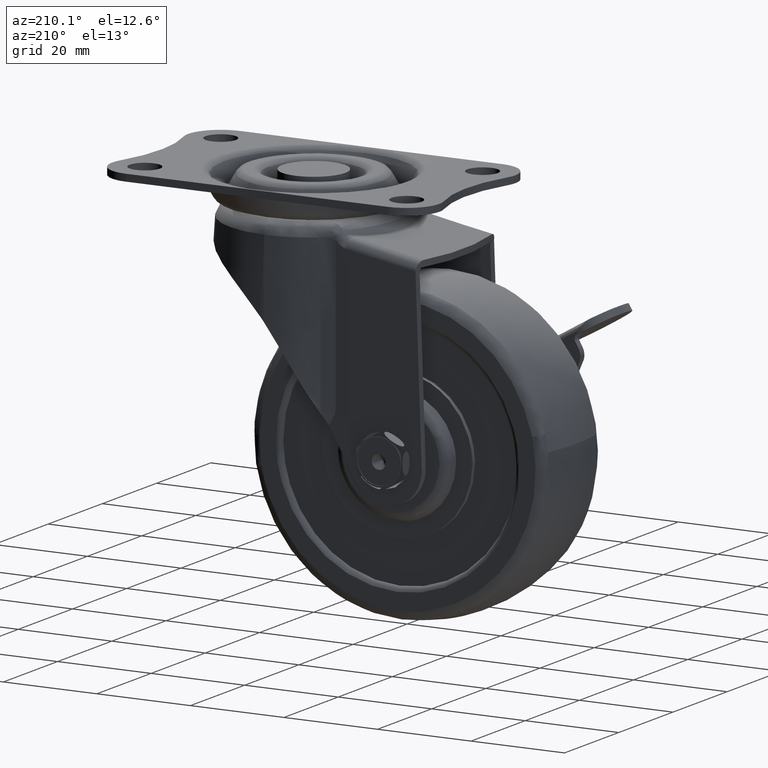
[diagram: clean part render]
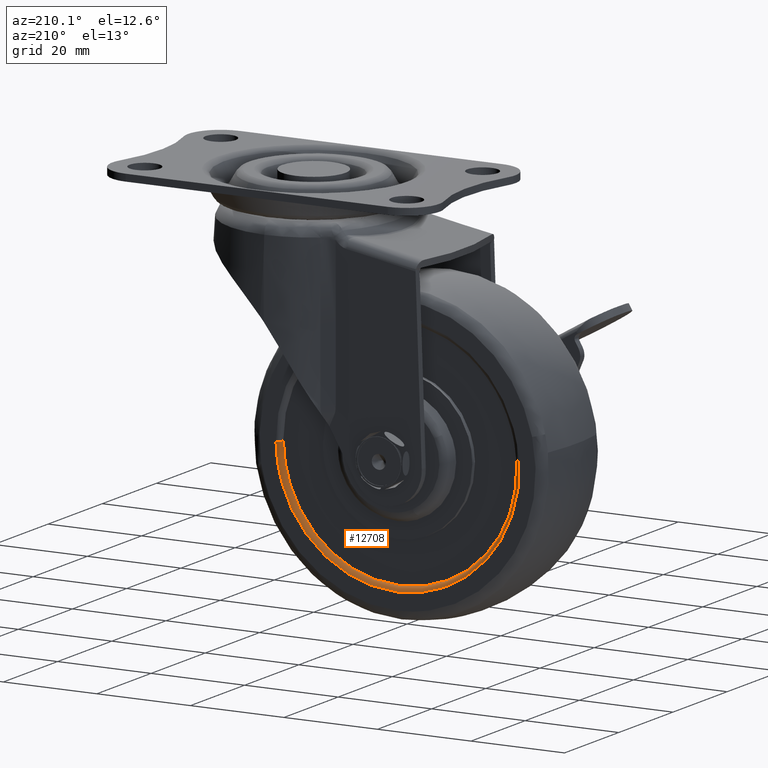
[diagram: same view with one face highlighted and labeled with its STEP entity id]
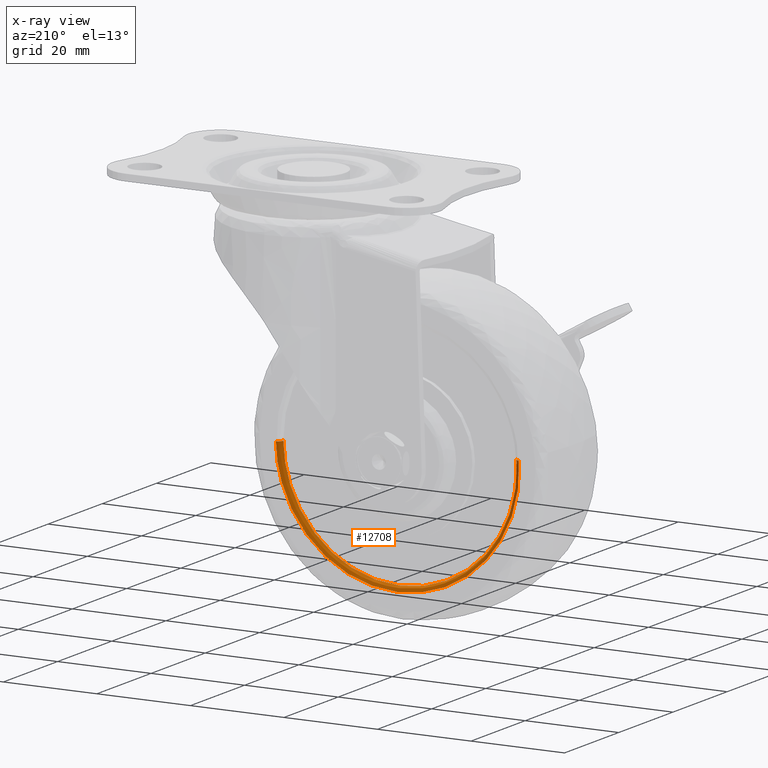
[diagram: x-ray of the same camera — body ghosted, the highlighted face saturated]
A machine part, auxiliary view. The second image highlights one B-rep face of the part: STEP entity #12708.
The next image is the same camera in x-ray: the body ghosted, the highlighted face saturated — about 0% of this face is hidden behind the body in this view.
In plain terms, the highlighted face is a freeform B-spline surface patch.
Its self-contained STEP definition (entity closure, byte-faithful):
#12575=CARTESIAN_POINT('',(-48.941556695166682,9.430462732127682,-46.256497287636890));
#12576=CARTESIAN_POINT('',(-48.991454831106047,9.430462732127678,-46.970313235816420));
#12577=CARTESIAN_POINT('',(-49.000446559545402,9.430462732127683,-47.685814584987355));
#12578=CARTESIAN_POINT('',(-49.314627974558043,9.430462732127682,-72.686261144532750));
#12579=CARTESIAN_POINT('',(-24.314181415012651,9.430462732127683,-73.000442559545419));
#12580=CARTESIAN_POINT('',(0.686265144532764,9.430462732127682,-73.314623974558060));
#12581=CARTESIAN_POINT('',(1.000446559545413,9.430462732127683,-48.314177415012658));
#12582=CARTESIAN_POINT('',(-48.861793095672816,10.577541061535856,-46.262073031553378));
#12583=CARTESIAN_POINT('',(-48.911531656370812,10.577541061535854,-46.973606181987044));
#12584=CARTESIAN_POINT('',(-48.920494629081922,10.577541061535857,-47.686819343465821));
#12585=CARTESIAN_POINT('',(-49.233671285616111,10.577541061535856,-72.607313972547743));
#12586=CARTESIAN_POINT('',(-24.313176656534182,10.577541061535857,-72.920490629081939));
#12587=CARTESIAN_POINT('',(0.607317972547745,10.577541061535856,-73.233667285616093));
#12588=CARTESIAN_POINT('',(0.920494629081935,10.577541061535857,-48.313172656534199));
#12589=CARTESIAN_POINT('',(-50.006078810325214,10.497579130909934,-46.182083610906744));
#12590=CARTESIAN_POINT('',(-50.058106631667222,10.497579130909932,-46.926365695273269));
#12591=CARTESIAN_POINT('',(-50.067482133015936,10.497579130909932,-47.672405114658766));
#12592=CARTESIAN_POINT('',(-50.395073018357174,10.497579130909930,-73.739887247674702));
#12593=CARTESIAN_POINT('',(-24.327590885341241,10.497579130909932,-74.067478133015925));
#12594=CARTESIAN_POINT('',(1.739891247674698,10.497579130909930,-74.395069018357162));
#12595=CARTESIAN_POINT('',(2.067482133015939,10.497579130909932,-48.327586885341248));
#12603=(BOUNDED_SURFACE()B_SPLINE_SURFACE(2,2,((#12575,#12582,#12589),(#12576,#12583,#12590),(#12577,#12584,#12591),(#12578,#12585,#12592),(#12579,#12586,#12593),(#12580,#12587,#12594),(#12581,#12588,#12595)),.UNSPECIFIED.,.F.,.F.,.U.)B_SPLINE_SURFACE_WITH_KNOTS((3,2,2,3),(3,3),(0.0,1.727735508990417,44.921164426214652,88.114593343438870),(0.0,1.822378177385583),.UNSPECIFIED.)GEOMETRIC_REPRESENTATION_ITEM()RATIONAL_B_SPLINE_SURFACE(((0.889999364455320,0.584039050125511,0.890000667766525),(0.899812936190551,0.590478952605768,0.899814253872707),(0.910479861105125,0.597478846025558,0.910481194407880),(0.643806483921220,0.422481343640185,0.643807426708639),(0.910479861105125,0.597478846025558,0.910481194407880),(0.643806483921220,0.422481343640185,0.643807426708639),(0.910479861105125,0.597478846025558,0.910481194407880)))REPRESENTATION_ITEM('')SURFACE());
#12604=CARTESIAN_POINT('',(-48.939141846005690,9.500000002761777,-46.256664710540761));
#12605=VERTEX_POINT('',#12604);
#12606=CARTESIAN_POINT('',(-24.0,9.499999999999240,-72.999996000000010));
#12607=VERTEX_POINT('',#12606);
#12608=CARTESIAN_POINT('',(-48.939141846005690,9.500000002761777,-46.256664710540761));
#12609=CARTESIAN_POINT('',(-49.009919394660372,9.500000002579093,-47.268873273929898));
#12610=CARTESIAN_POINT('',(-49.029936506407772,9.500000002184047,-49.515931704943831));
#12611=CARTESIAN_POINT('',(-48.633961467304907,9.500000001665825,-52.650441043038562));
#12612=CARTESIAN_POINT('',(-47.774334193332159,9.500000001151651,-55.963724797230839));
#12613=CARTESIAN_POINT('',(-46.365609927272537,9.500000000651752,-59.438419597759811));
#12614=CARTESIAN_POINT('',(-44.443581195238011,9.500000000257078,-62.538094614648493));
#12615=CARTESIAN_POINT('',(-42.180910186194389,9.499999999957019,-65.245964555885635));
#12616=CARTESIAN_POINT('',(-39.649556243493201,9.499999999733864,-67.633875208951324));
#12617=CARTESIAN_POINT('',(-36.676444337086579,9.499999999609686,-69.650460437138705));
#12618=CARTESIAN_POINT('',(-33.596842668807177,9.499999999585111,-71.144775068346988));
#12619=CARTESIAN_POINT('',(-30.667628367624559,9.499999999631092,-72.169324773702087));
#12620=CARTESIAN_POINT('',(-27.417862152519341,9.499999999763901,-72.845230169164864));
#12621=CARTESIAN_POINT('',(-25.121483347486119,9.499999999911836,-73.000038962842979));
#12622=CARTESIAN_POINT('',(-24.0,9.499999999999240,-72.999996000000010));
#12623=B_SPLINE_CURVE_WITH_KNOTS('',3,(#12608,#12609,#12610,#12611,#12612,#12613,#12614,#12615,#12616,#12617,#12618,#12619,#12620,#12621,#12622),.UNSPECIFIED.,.F.,.U.,(4,1,1,1,1,1,1,1,1,1,1,1,4),(0.000000081322085,3.044046255343353,6.728959339112059,9.452611291168356,13.297749381539230,17.943962309590109,20.347193853948632,23.871813520583508,28.357823995905701,31.081472637547510,34.125552092378001,37.650274967160463,41.014725634764403),.UNSPECIFIED.);
#12624=EDGE_CURVE('',#12605,#12607,#12623,.T.);
#12625=ORIENTED_EDGE('',*,*,#12624,.T.);
#12626=CARTESIAN_POINT('',(0.998026105094290,9.500000002764466,-48.314146997172102));
#12627=VERTEX_POINT('',#12626);
#12628=CARTESIAN_POINT('',(-24.0,9.499999999999240,-72.999996000000010));
#12629=CARTESIAN_POINT('',(-22.731909126046620,9.499999999999247,-73.000064084694600));
#12630=CARTESIAN_POINT('',(-20.347923319942581,9.500000000019591,-72.818217776195880));
#12631=CARTESIAN_POINT('',(-17.320994243181271,9.500000000095122,-72.144114515361039));
#12632=CARTESIAN_POINT('',(-14.485936897558290,9.500000000203430,-71.177160868210038));
#12633=CARTESIAN_POINT('',(-11.451400347596939,9.500000000363848,-69.743914137405397));
#12634=CARTESIAN_POINT('',(-8.424542983516103,9.500000000596144,-67.675078151832963));
#12635=CARTESIAN_POINT('',(-5.818617425474550,9.500000000866260,-65.253686201888726));
#12636=CARTESIAN_POINT('',(-3.566404757537513,9.500000001168406,-62.565340879215441));
#12637=CARTESIAN_POINT('',(-1.417193662319300,9.500000001562095,-59.046136033812672));
#12638=CARTESIAN_POINT('',(0.095046026698558,9.500000002005134,-55.095596255010193));
#12639=CARTESIAN_POINT('',(0.835833691203381,9.500000002417558,-51.406472438904373));
#12640=CARTESIAN_POINT('',(0.985928362313909,9.500000002657135,-49.277806220631902));
#12641=CARTESIAN_POINT('',(0.998026105094290,9.500000002764466,-48.314146997172102));
#12642=B_SPLINE_CURVE_WITH_KNOTS('',3,(#12628,#12629,#12630,#12631,#12632,#12633,#12634,#12635,#12636,#12637,#12638,#12639,#12640,#12641),.UNSPECIFIED.,.F.,.U.,(4,1,1,1,1,1,1,1,1,1,1,4),(0.000000073082639,3.804266259181887,7.152036475953516,9.282438064176617,12.782380109152820,17.195341110373001,20.238718664621441,23.434346135356581,27.695142523490400,32.564639749860099,36.064595402421368,38.955809040831639),.UNSPECIFIED.);
#12643=EDGE_CURVE('',#12607,#12627,#12642,.T.);
#12644=ORIENTED_EDGE('',*,*,#12643,.T.);
#12645=CARTESIAN_POINT('',(1.997947143432381,10.499999999999240,-48.326713037192263));
#12646=VERTEX_POINT('',#12645);
#12647=CARTESIAN_POINT('',(0.998026105094290,9.500000002764466,-48.314146997172102));
#12648=CARTESIAN_POINT('',(0.997931083221717,9.622726626347738,-48.314145803018199));
#12649=CARTESIAN_POINT('',(1.045266829924511,9.876317196866157,-48.314740672859671));
#12650=CARTESIAN_POINT('',(1.237043884249663,10.179295109447290,-48.317150741292110));
#12651=CARTESIAN_POINT('',(1.556623744035308,10.428607034907751,-48.321166911729819));
#12652=CARTESIAN_POINT('',(1.826035572636812,10.500433715097310,-48.324552618908193));
#12653=CARTESIAN_POINT('',(1.997947143432381,10.499999999999240,-48.326713037192263));
#12654=B_SPLINE_CURVE_WITH_KNOTS('',3,(#12647,#12648,#12649,#12650,#12651,#12652,#12653),.UNSPECIFIED.,.F.,.U.,(4,1,1,1,4),(0.000000316512908,0.368164299255643,0.760921235700460,1.055397101261289,1.570835741451208),.UNSPECIFIED.);
#12655=EDGE_CURVE('',#12627,#12646,#12654,.T.);
#12656=ORIENTED_EDGE('',*,*,#12655,.T.);
#12657=CARTESIAN_POINT('',(-24.0,10.499999999999240,-73.999995999999996));
#12658=VERTEX_POINT('',#12657);
#12659=CARTESIAN_POINT('',(-24.0,10.499999999999240,-73.999995999999996));
#12660=CARTESIAN_POINT('',(-22.522927359248339,10.499999999999250,-74.000116087690927));
#12661=CARTESIAN_POINT('',(-20.096363306496951,10.499999999999240,-73.792618252059569));
#12662=CARTESIAN_POINT('',(-16.543016178468211,10.499999999999240,-72.978557501492475));
#12663=CARTESIAN_POINT('',(-13.214689167232491,10.499999999999300,-71.763716106382361));
#12664=CARTESIAN_POINT('',(-10.194649718801930,10.499999999999240,-70.117288395361001));
#12665=CARTESIAN_POINT('',(-7.542883725716466,10.499999999999220,-68.196142937435653));
#12666=CARTESIAN_POINT('',(-5.350336122145808,10.499999999999160,-66.208180753968449));
#12667=CARTESIAN_POINT('',(-3.035326050566916,10.499999999999170,-63.528777362373233));
#12668=CARTESIAN_POINT('',(-1.037400237156787,10.499999999999600,-60.408446144203651));
#12669=CARTESIAN_POINT('',(0.655991268334525,10.499999999998879,-56.589306242135059));
#12670=CARTESIAN_POINT('',(1.714215098160936,10.499999999999570,-52.596428976137908));
#12671=CARTESIAN_POINT('',(1.980788225493401,10.499999999998931,-49.698165517827732));
#12672=CARTESIAN_POINT('',(1.997947143432381,10.499999999999240,-48.326713037192263));
#12673=B_SPLINE_CURVE_WITH_KNOTS('',3,(#12659,#12660,#12661,#12662,#12663,#12664,#12665,#12666,#12667,#12668,#12669,#12670,#12671,#12672),.UNSPECIFIED.,.F.,.U.,(4,1,1,1,1,1,1,1,1,1,1,4),(0.000000073381443,4.431195500868540,7.279859636856948,10.919802340241009,15.034515046905190,17.566672448276279,20.731791459932300,23.896924858870879,28.169915687282302,31.809857162162849,36.399359744589532,40.514041399407439),.UNSPECIFIED.);
#12674=EDGE_CURVE('',#12658,#12646,#12673,.T.);
#12675=ORIENTED_EDGE('',*,*,#12674,.F.);
#12676=CARTESIAN_POINT('',(-49.936707514671852,10.499999999999240,-46.186931459161343));
#12677=VERTEX_POINT('',#12676);
#12678=CARTESIAN_POINT('',(-49.936707514671852,10.499999999999240,-46.186931459161343));
#12679=CARTESIAN_POINT('',(-50.033628143820764,10.499999999999281,-47.572058110636853));
#12680=CARTESIAN_POINT('',(-50.006463062092152,10.499999999999201,-50.190704280537332));
#12681=CARTESIAN_POINT('',(-49.426598985021450,10.499999999999250,-53.763072581937443));
#12682=CARTESIAN_POINT('',(-48.522521686970833,10.499999999999220,-56.802564566440537));
#12683=CARTESIAN_POINT('',(-47.132352844521733,10.499999999999311,-60.079832950414023));
#12684=CARTESIAN_POINT('',(-45.270490335994168,10.499999999999091,-63.125783747814872));
#12685=CARTESIAN_POINT('',(-42.692320336520012,10.499999999999520,-66.191374571819338));
#12686=CARTESIAN_POINT('',(-39.919925194204509,10.499999999999050,-68.691455761385242));
#12687=CARTESIAN_POINT('',(-36.884786150464230,10.499999999999631,-70.665894379440019));
#12688=CARTESIAN_POINT('',(-33.427132543094203,10.499999999999220,-72.330278659643824));
#12689=CARTESIAN_POINT('',(-29.276260643050289,10.499999999999480,-73.634338374180800));
#12690=CARTESIAN_POINT('',(-25.832861996599629,10.499999999999041,-74.000298060090913));
#12691=CARTESIAN_POINT('',(-24.0,10.499999999999240,-73.999995999999996));
#12692=B_SPLINE_CURVE_WITH_KNOTS('',3,(#12678,#12679,#12680,#12681,#12682,#12683,#12684,#12685,#12686,#12687,#12688,#12689,#12690,#12691),.UNSPECIFIED.,.F.,.U.,(4,1,1,1,1,1,1,1,1,1,1,4),(0.000000078224623,4.165530175261957,7.831235151293825,10.830451920890919,13.663046413561380,18.495096079016289,21.494235850803118,25.659808114617270,29.658768413232441,32.324731361521572,37.156794496778950,42.655314658902007),.UNSPECIFIED.);
#12693=EDGE_CURVE('',#12677,#12658,#12692,.T.);
#12694=ORIENTED_EDGE('',*,*,#12693,.F.);
#12695=CARTESIAN_POINT('',(-48.939141846005690,9.500000002761777,-46.256664710540761));
#12696=CARTESIAN_POINT('',(-48.939028783922538,9.622738824515261,-46.256672613976043));
#12697=CARTESIAN_POINT('',(-48.975683558775081,9.818999732097552,-46.254110319885910));
#12698=CARTESIAN_POINT('',(-49.111826760368842,10.082028064767330,-46.244593444566974));
#12699=CARTESIAN_POINT('',(-49.311214932154130,10.302730083879389,-46.230655529560273));
#12700=CARTESIAN_POINT('',(-49.602097198190059,10.463148386645830,-46.210321864492769));
#12701=CARTESIAN_POINT('',(-49.830609327913621,10.500050006904321,-46.194348085222927));
#12702=CARTESIAN_POINT('',(-49.936707514671852,10.499999999999240,-46.186931459161343));
#12703=B_SPLINE_CURVE_WITH_KNOTS('',3,(#12695,#12696,#12697,#12698,#12699,#12700,#12701,#12702),.UNSPECIFIED.,.F.,.U.,(4,1,1,1,1,4),(0.000000316507712,0.368164299307162,0.589085056882550,0.883574653240908,1.251763209055901,1.570835741686721),.UNSPECIFIED.);
#12704=EDGE_CURVE('',#12605,#12677,#12703,.T.);
#12705=ORIENTED_EDGE('',*,*,#12704,.F.);
#12706=EDGE_LOOP('',(#12625,#12644,#12656,#12675,#12694,#12705));
#12707=FACE_OUTER_BOUND('',#12706,.T.);
#12708=ADVANCED_FACE('',(#12707),#12603,.T.);